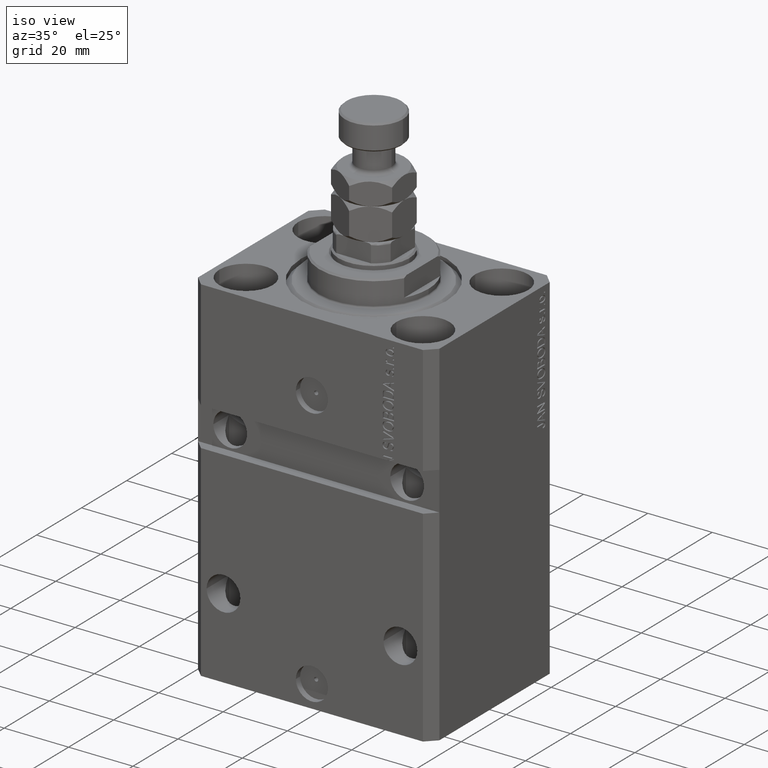
[diagram: clean part render]
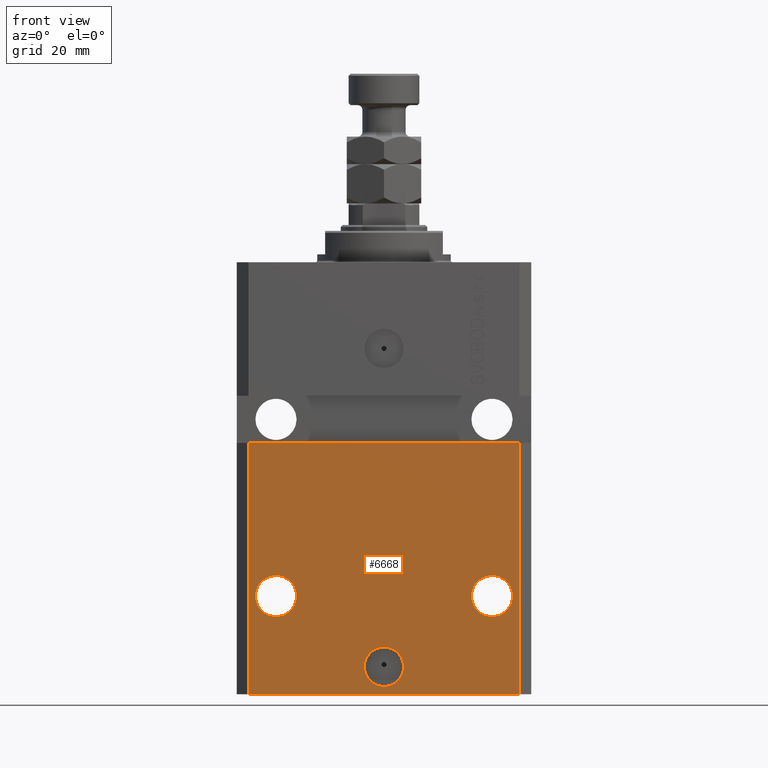
[diagram: tour spotlight — one face highlighted and labeled with its STEP entity id]
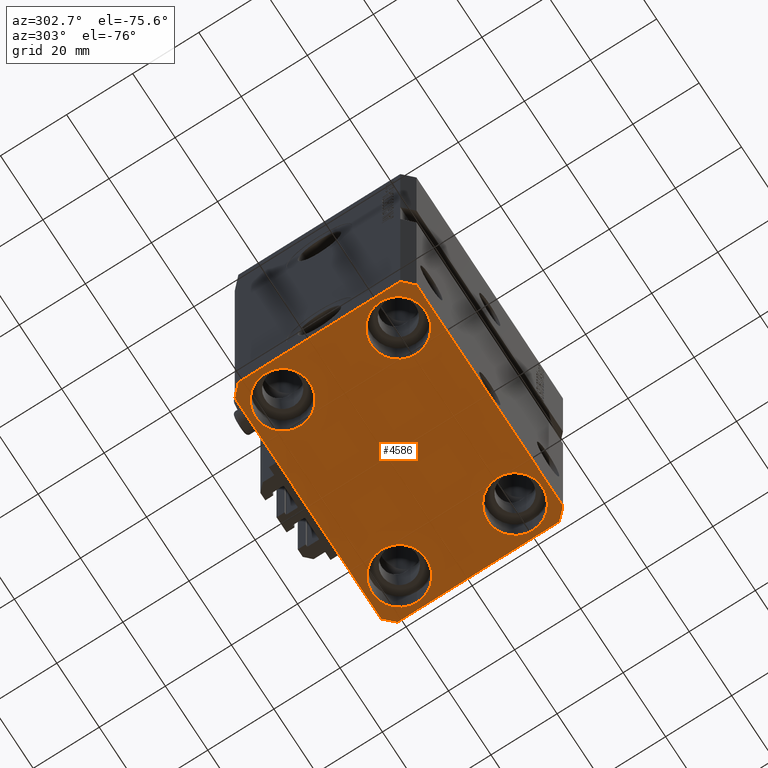
[diagram: tour spotlight — one face highlighted and labeled with its STEP entity id]
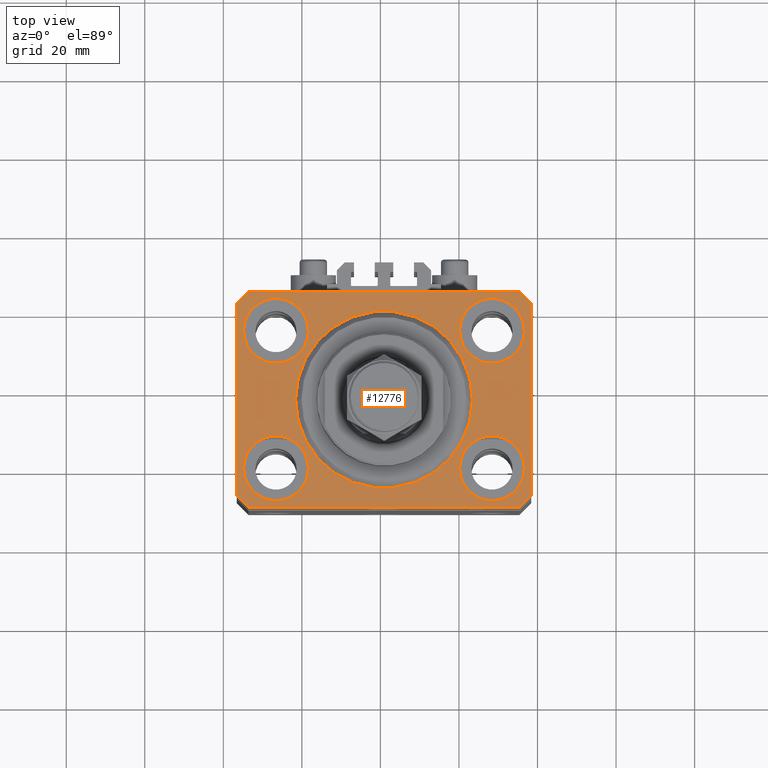
[diagram: tour spotlight — one face highlighted and labeled with its STEP entity id]
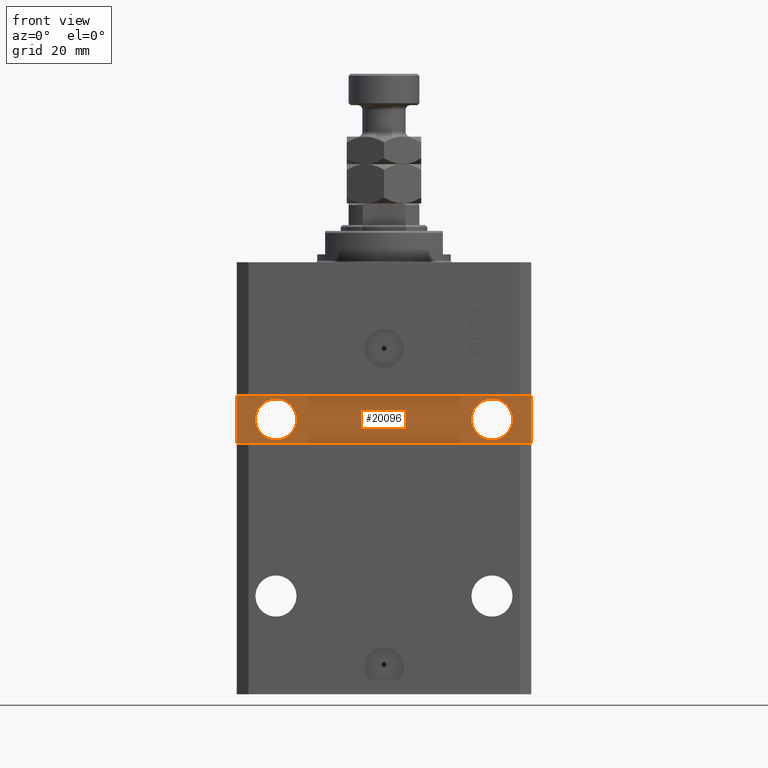
[diagram: tour spotlight — one face highlighted and labeled with its STEP entity id]
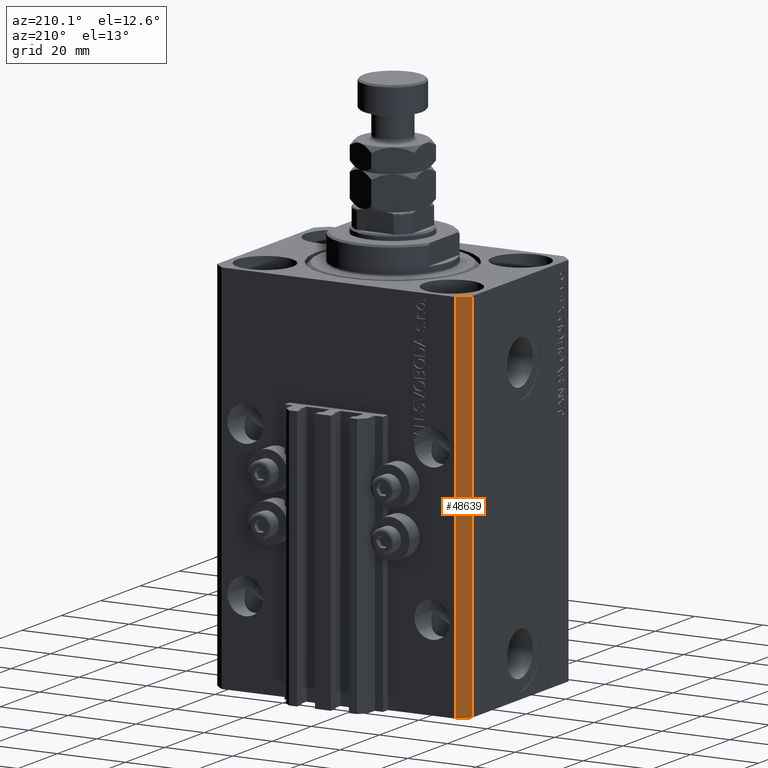
[diagram: tour spotlight — one face highlighted and labeled with its STEP entity id]
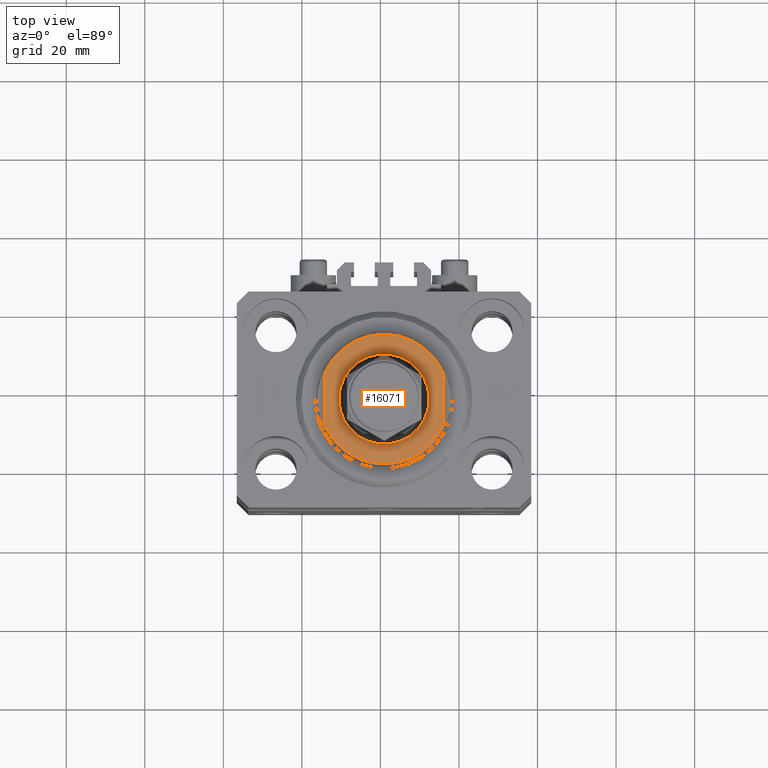
[diagram: tour spotlight — one face highlighted and labeled with its STEP entity id]
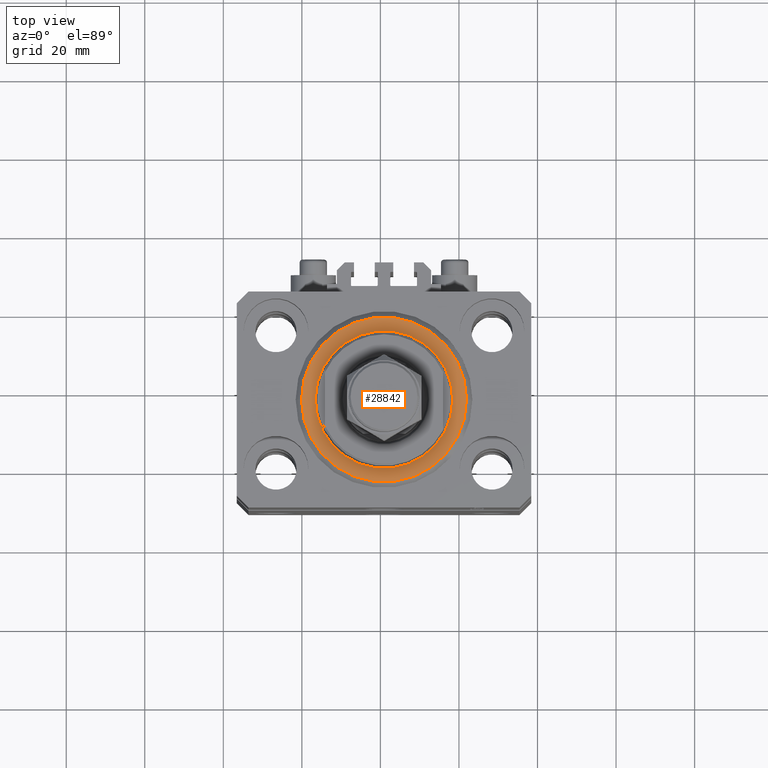
[diagram: tour spotlight — one face highlighted and labeled with its STEP entity id]
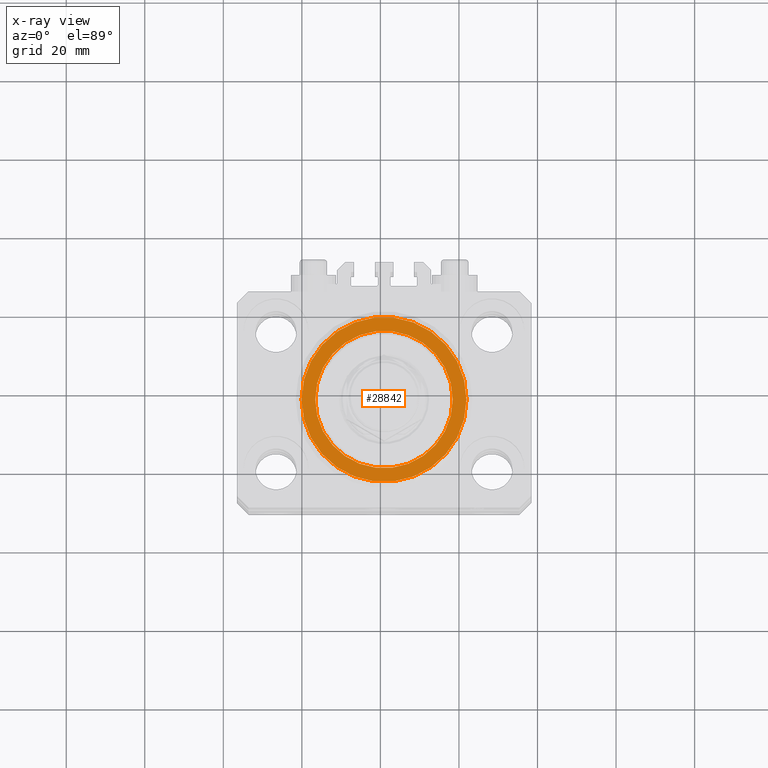
[diagram: x-ray of the same camera — body ghosted, this tour face saturated]
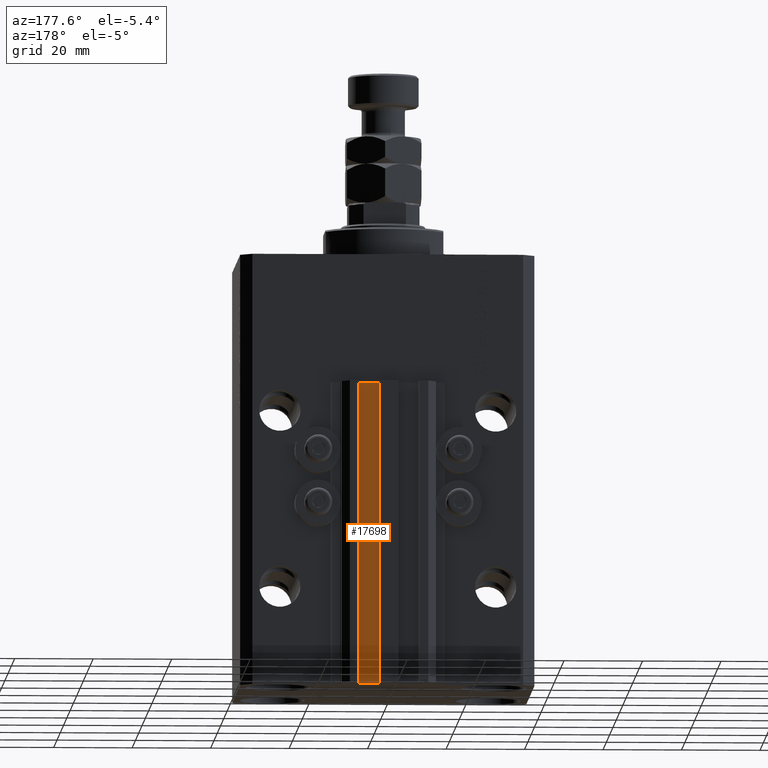
[diagram: tour spotlight — one face highlighted and labeled with its STEP entity id]
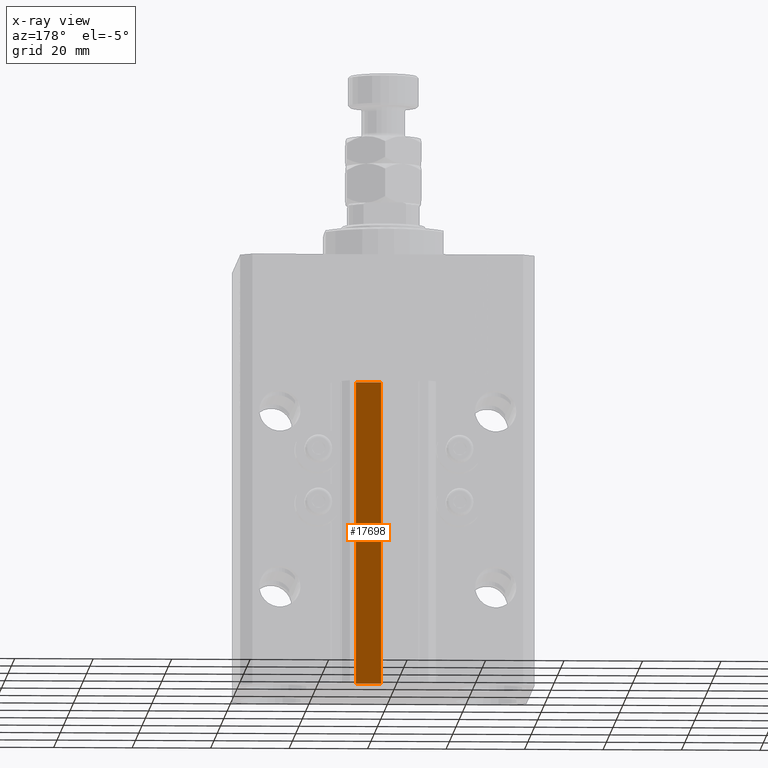
[diagram: x-ray of the same camera — body ghosted, this tour face saturated]
A machine part: a face-by-face anatomy tour. The part has 1136 B-rep faces; the first image is the clean iso view, then the 8 largest visible faces are spotlighted one at a time (largest first), each with its STEP entity span.

Face 1 — front view, entity #6668. In plain terms, the highlighted planar face has unit normal (0, -1, 0).
Definition (entity closure, byte-faithful):
#987 = DIRECTION ( 'NONE',  ( 1.000000000000000000, 0.000000000000000000, 0.000000000000000000 ) ) ;
#1761 = VERTEX_POINT ( 'NONE', #33671 ) ;
#3985 = CARTESIAN_POINT ( 'NONE',  ( -27.50000000000001421, -27.50000000000000000, -84.99999999999998579 ) ) ;
#4241 = VERTEX_POINT ( 'NONE', #5187 ) ;
#4522 = EDGE_CURVE ( 'NONE', #30040, #1761, #25278, .T. ) ;
#4591 = AXIS2_PLACEMENT_3D ( 'NONE', #15993, #42481, #23657 ) ;
#5187 = CARTESIAN_POINT ( 'NONE',  ( 5.000000000000006217, -27.49999999999999645, -103.0000000000000000 ) ) ;
#5592 = FACE_OUTER_BOUND ( 'NONE', #44115, .T. ) ;
#6106 = LINE ( 'NONE', #32879, #41641 ) ;
#6342 = EDGE_LOOP ( 'NONE', ( #37055, #14237 ) ) ;
#6668 = ADVANCED_FACE ( 'NONE', ( #46970, #28143, #43246, #5592 ), #17000, .T. ) ;
#7086 = ORIENTED_EDGE ( 'NONE', *, *, #10982, .T. ) ;
#8364 = CARTESIAN_POINT ( 'NONE',  ( -34.49999999999998579, -27.50000000000000000, -46.00000000000000000 ) ) ;
#8905 = AXIS2_PLACEMENT_3D ( 'NONE', #3985, #46095, #38915 ) ;
#10057 = DIRECTION ( 'NONE',  ( 1.176083712526788232E-16, -1.000000000000000000, 0.000000000000000000 ) ) ;
#10756 = VERTEX_POINT ( 'NONE', #47116 ) ;
#10982 = EDGE_CURVE ( 'NONE', #10756, #37414, #19825, .T. ) ;
#11392 = AXIS2_PLACEMENT_3D ( 'NONE', #28881, #10057, #48442 ) ;
#12920 = ORIENTED_EDGE ( 'NONE', *, *, #29607, .F. ) ;
#14237 = ORIENTED_EDGE ( 'NONE', *, *, #16081, .F. ) ;
#14258 = CARTESIAN_POINT ( 'NONE',  ( -34.49999999999998579, -27.49999999999999645, -110.0000000000000000 ) ) ;
#14736 = EDGE_CURVE ( 'NONE', #46480, #14742, #42148, .T. ) ;
#14742 = VERTEX_POINT ( 'NONE', #16114 ) ;
#15292 = VERTEX_POINT ( 'NONE', #21303 ) ;
#15993 = CARTESIAN_POINT ( 'NONE',  ( -27.50000000000001421, -27.50000000000000000, -84.99999999999998579 ) ) ;
#16081 = EDGE_CURVE ( 'NONE', #1761, #30040, #39063, .T. ) ;
#16114 = CARTESIAN_POINT ( 'NONE',  ( -22.25000000000002132, -27.50000000000000000, -84.99999999999998579 ) ) ;
#16657 = ORIENTED_EDGE ( 'NONE', *, *, #47841, .F. ) ;
#16922 = ORIENTED_EDGE ( 'NONE', *, *, #45763, .F. ) ;
#16930 = DIRECTION ( 'NONE',  ( 1.000000000000000000, 0.000000000000000000, 0.000000000000000000 ) ) ;
#17000 = PLANE ( 'NONE',  #18913 ) ;
#17831 = DIRECTION ( 'NONE',  ( 1.000000000000000000, 0.000000000000000000, 0.000000000000000000 ) ) ;
#18050 = CIRCLE ( 'NONE', #4591, 5.249999999999994671 ) ;
#18913 = AXIS2_PLACEMENT_3D ( 'NONE', #14258, #29616, #25661 ) ;
#19643 = CARTESIAN_POINT ( 'NONE',  ( -37.50000000000000000, -27.50000000000000000, -46.00000000000000000 ) ) ;
#19825 = LINE ( 'NONE', #34934, #24557 ) ;
#21135 = VERTEX_POINT ( 'NONE', #8364 ) ;
#21303 = CARTESIAN_POINT ( 'NONE',  ( 34.49999999999999289, -27.49999999999999289, -46.00000000000000711 ) ) ;
#21546 = DIRECTION ( 'NONE',  ( 1.176083712526788232E-16, -1.000000000000000000, 0.000000000000000000 ) ) ;
#21587 = ORIENTED_EDGE ( 'NONE', *, *, #34475, .T. ) ;
#21888 = CARTESIAN_POINT ( 'NONE',  ( -5.000000000000006217, -27.49999999999999645, -103.0000000000000000 ) ) ;
#22899 = EDGE_CURVE ( 'NONE', #10756, #21135, #6106, .T. ) ;
#23657 = DIRECTION ( 'NONE',  ( -1.000000000000000000, 0.000000000000000000, 0.000000000000000000 ) ) ;
#23684 = AXIS2_PLACEMENT_3D ( 'NONE', #30205, #21546, #17831 ) ;
#23851 = DIRECTION ( 'NONE',  ( 1.000000000000000000, 9.251858538542972814E-17, -9.251858538542972814E-17 ) ) ;
#24548 = VERTEX_POINT ( 'NONE', #21888 ) ;
#24557 = VECTOR ( 'NONE', #987, 1000.000000000000000 ) ;
#25278 = CIRCLE ( 'NONE', #23684, 5.249999999999994671 ) ;
#25282 = CARTESIAN_POINT ( 'NONE',  ( 0.000000000000000000, -27.49999999999999645, -103.0000000000000000 ) ) ;
#25661 = DIRECTION ( 'NONE',  ( 0.000000000000000000, -0.000000000000000000, -1.000000000000000000 ) ) ;
#26149 = VECTOR ( 'NONE', #23851, 1000.000000000000000 ) ;
#26719 = AXIS2_PLACEMENT_3D ( 'NONE', #46905, #39726, #16930 ) ;
#27248 = CARTESIAN_POINT ( 'NONE',  ( 34.49999999999999289, -27.49999999999999645, -110.0000000000000000 ) ) ;
#28143 = FACE_BOUND ( 'NONE', #6342, .T. ) ;
#28378 = EDGE_CURVE ( 'NONE', #4241, #24548, #30670, .T. ) ;
#28881 = CARTESIAN_POINT ( 'NONE',  ( 27.50000000000001421, -27.49999999999999289, -84.99999999999998579 ) ) ;
#29060 = EDGE_LOOP ( 'NONE', ( #41451, #16922 ) ) ;
#29246 = DIRECTION ( 'NONE',  ( 1.176083712526788232E-16, -1.000000000000000000, 0.000000000000000000 ) ) ;
#29366 = CIRCLE ( 'NONE', #41213, 5.000000000000006217 ) ;
#29607 = EDGE_CURVE ( 'NONE', #14742, #46480, #18050, .T. ) ;
#29616 = DIRECTION ( 'NONE',  ( 0.000000000000000000, -1.000000000000000000, 0.000000000000000000 ) ) ;
#29656 = DIRECTION ( 'NONE',  ( 0.000000000000000000, 0.000000000000000000, 1.000000000000000000 ) ) ;
#29827 = LINE ( 'NONE', #19643, #26149 ) ;
#30040 = VERTEX_POINT ( 'NONE', #43786 ) ;
#30100 = DIRECTION ( 'NONE',  ( 0.000000000000000000, 0.000000000000000000, 1.000000000000000000 ) ) ;
#30205 = CARTESIAN_POINT ( 'NONE',  ( 27.50000000000001421, -27.49999999999999289, -84.99999999999998579 ) ) ;
#30670 = CIRCLE ( 'NONE', #26719, 5.000000000000006217 ) ;
#32879 = CARTESIAN_POINT ( 'NONE',  ( -34.49999999999998579, -27.49999999999999645, -110.0000000000000000 ) ) ;
#33671 = CARTESIAN_POINT ( 'NONE',  ( 22.25000000000002132, -27.49999999999999289, -84.99999999999998579 ) ) ;
#34475 = EDGE_CURVE ( 'NONE', #37414, #15292, #48188, .T. ) ;
#34934 = CARTESIAN_POINT ( 'NONE',  ( -34.49999999999998579, -27.49999999999999645, -110.0000000000000000 ) ) ;
#36098 = EDGE_LOOP ( 'NONE', ( #12920, #47730 ) ) ;
#37055 = ORIENTED_EDGE ( 'NONE', *, *, #4522, .F. ) ;
#37414 = VERTEX_POINT ( 'NONE', #27248 ) ;
#37566 = ORIENTED_EDGE ( 'NONE', *, *, #22899, .F. ) ;
#38915 = DIRECTION ( 'NONE',  ( -1.000000000000000000, 0.000000000000000000, 0.000000000000000000 ) ) ;
#39063 = CIRCLE ( 'NONE', #11392, 5.249999999999994671 ) ;
#39726 = DIRECTION ( 'NONE',  ( 1.176083712526788232E-16, -1.000000000000000000, 0.000000000000000000 ) ) ;
#41213 = AXIS2_PLACEMENT_3D ( 'NONE', #25282, #29246, #44360 ) ;
#41451 = ORIENTED_EDGE ( 'NONE', *, *, #28378, .F. ) ;
#41641 = VECTOR ( 'NONE', #29656, 1000.000000000000000 ) ;
#42148 = CIRCLE ( 'NONE', #8905, 5.249999999999994671 ) ;
#42481 = DIRECTION ( 'NONE',  ( 1.176083712526788232E-16, -1.000000000000000000, 0.000000000000000000 ) ) ;
#43246 = FACE_BOUND ( 'NONE', #36098, .T. ) ;
#43786 = CARTESIAN_POINT ( 'NONE',  ( 32.75000000000000711, -27.49999999999999289, -84.99999999999998579 ) ) ;
#44115 = EDGE_LOOP ( 'NONE', ( #16657, #37566, #7086, #21587 ) ) ;
#44360 = DIRECTION ( 'NONE',  ( 1.000000000000000000, 0.000000000000000000, 0.000000000000000000 ) ) ;
#44749 = CARTESIAN_POINT ( 'NONE',  ( -32.75000000000000711, -27.50000000000000000, -84.99999999999998579 ) ) ;
#45763 = EDGE_CURVE ( 'NONE', #24548, #4241, #29366, .T. ) ;
#46095 = DIRECTION ( 'NONE',  ( 1.176083712526788232E-16, -1.000000000000000000, 0.000000000000000000 ) ) ;
#46480 = VERTEX_POINT ( 'NONE', #44749 ) ;
#46718 = VECTOR ( 'NONE', #30100, 1000.000000000000000 ) ;
#46905 = CARTESIAN_POINT ( 'NONE',  ( 0.000000000000000000, -27.49999999999999645, -103.0000000000000000 ) ) ;
#46970 = FACE_BOUND ( 'NONE', #29060, .T. ) ;
#47116 = CARTESIAN_POINT ( 'NONE',  ( -34.49999999999998579, -27.49999999999999645, -110.0000000000000000 ) ) ;
#47730 = ORIENTED_EDGE ( 'NONE', *, *, #14736, .F. ) ;
#47841 = EDGE_CURVE ( 'NONE', #21135, #15292, #29827, .T. ) ;
#47938 = CARTESIAN_POINT ( 'NONE',  ( 34.49999999999999289, -27.49999999999999645, -110.0000000000000000 ) ) ;
#48188 = LINE ( 'NONE', #47938, #46718 ) ;
#48442 = DIRECTION ( 'NONE',  ( 1.000000000000000000, 0.000000000000000000, 0.000000000000000000 ) ) ;

Face 2 — auxiliary view, entity #4586. In plain terms, the highlighted planar face has unit normal (0, 0, 1).
Definition (entity closure, byte-faithful):
#695 = EDGE_CURVE ( 'NONE', #40244, #42543, #17986, .T. ) ;
#941 = DIRECTION ( 'NONE',  ( 1.000000000000000000, 0.000000000000000000, -0.000000000000000000 ) ) ;
#987 = DIRECTION ( 'NONE',  ( 1.000000000000000000, 0.000000000000000000, 0.000000000000000000 ) ) ;
#1080 = CARTESIAN_POINT ( 'NONE',  ( 27.49999999999999645, 17.50000000000001066, -110.0000000000000000 ) ) ;
#1880 = VECTOR ( 'NONE', #13453, 1000.000000000000000 ) ;
#2062 = DIRECTION ( 'NONE',  ( -0.000000000000000000, -0.000000000000000000, 1.000000000000000000 ) ) ;
#2554 = CIRCLE ( 'NONE', #10506, 8.250000000000000000 ) ;
#3085 = CARTESIAN_POINT ( 'NONE',  ( 35.74999999999999289, 17.50000000000001066, -110.0000000000000000 ) ) ;
#3467 = DIRECTION ( 'NONE',  ( -0.000000000000000000, -0.000000000000000000, 1.000000000000000000 ) ) ;
#3664 = DIRECTION ( 'NONE',  ( 1.000000000000000000, 0.000000000000000000, 0.000000000000000000 ) ) ;
#3944 = CIRCLE ( 'NONE', #8689, 8.250000000000000000 ) ;
#4238 = DIRECTION ( 'NONE',  ( -0.000000000000000000, -0.000000000000000000, 1.000000000000000000 ) ) ;
#4586 = ADVANCED_FACE ( 'NONE', ( #34890, #45554, #11623, #38372, #22755 ), #23002, .F. ) ;
#4820 = CARTESIAN_POINT ( 'NONE',  ( 27.49999999999999645, 17.50000000000001066, -110.0000000000000000 ) ) ;
#5030 = CARTESIAN_POINT ( 'NONE',  ( 27.50000000000000355, -17.50000000000000000, -110.0000000000000000 ) ) ;
#5492 = EDGE_CURVE ( 'NONE', #18588, #9791, #32390, .T. ) ;
#6049 = VERTEX_POINT ( 'NONE', #34777 ) ;
#6165 = EDGE_CURVE ( 'NONE', #34145, #20815, #3944, .T. ) ;
#7579 = VERTEX_POINT ( 'NONE', #17979 ) ;
#7613 = CARTESIAN_POINT ( 'NONE',  ( 19.25000000000000000, -17.50000000000000000, -110.0000000000000000 ) ) ;
#7862 = AXIS2_PLACEMENT_3D ( 'NONE', #11691, #4238, #31231 ) ;
#8040 = CARTESIAN_POINT ( 'NONE',  ( -27.50000000000000355, 17.50000000000000000, -110.0000000000000000 ) ) ;
#8333 = ORIENTED_EDGE ( 'NONE', *, *, #42564, .T. ) ;
#8562 = ORIENTED_EDGE ( 'NONE', *, *, #6165, .T. ) ;
#8689 = AXIS2_PLACEMENT_3D ( 'NONE', #5030, #20151, #35258 ) ;
#8756 = EDGE_CURVE ( 'NONE', #28225, #27960, #26090, .T. ) ;
#8958 = CARTESIAN_POINT ( 'NONE',  ( 34.50000000000056843, 27.50000000000000000, -110.0000000000000000 ) ) ;
#9791 = VERTEX_POINT ( 'NONE', #40608 ) ;
#9820 = EDGE_CURVE ( 'NONE', #20815, #34145, #38028, .T. ) ;
#10506 = AXIS2_PLACEMENT_3D ( 'NONE', #8040, #38273, #23141 ) ;
#10711 = CARTESIAN_POINT ( 'NONE',  ( -27.50000000000000355, -17.50000000000000000, -110.0000000000000000 ) ) ;
#10756 = VERTEX_POINT ( 'NONE', #47116 ) ;
#10982 = EDGE_CURVE ( 'NONE', #10756, #37414, #19825, .T. ) ;
#11074 = DIRECTION ( 'NONE',  ( 0.7071067811865474617, 0.7071067811865474617, 0.000000000000000000 ) ) ;
#11623 = FACE_BOUND ( 'NONE', #25160, .T. ) ;
#11645 = DIRECTION ( 'NONE',  ( 1.000000000000000000, 0.000000000000000000, 0.000000000000000000 ) ) ;
#11691 = CARTESIAN_POINT ( 'NONE',  ( -27.50000000000000355, 17.50000000000000000, -110.0000000000000000 ) ) ;
#11886 = AXIS2_PLACEMENT_3D ( 'NONE', #26237, #14339, #3664 ) ;
#13290 = EDGE_LOOP ( 'NONE', ( #46416, #20863, #37123, #28648, #25718, #29406, #35586, #17984 ) ) ;
#13405 = VERTEX_POINT ( 'NONE', #20920 ) ;
#13429 = DIRECTION ( 'NONE',  ( 0.7071067811865483499, -0.7071067811865466846, 0.000000000000000000 ) ) ;
#13453 = DIRECTION ( 'NONE',  ( -0.7071067811865471286, -0.7071067811865479058, 0.000000000000000000 ) ) ;
#13574 = CARTESIAN_POINT ( 'NONE',  ( 37.50000000000051870, 24.49999999999995381, -110.0000000000000000 ) ) ;
#14015 = EDGE_LOOP ( 'NONE', ( #8562, #23213 ) ) ;
#14019 = EDGE_CURVE ( 'NONE', #37414, #13405, #48727, .T. ) ;
#14339 = DIRECTION ( 'NONE',  ( -0.000000000000000000, -0.000000000000000000, 1.000000000000000000 ) ) ;
#15190 = EDGE_CURVE ( 'NONE', #7579, #6049, #2554, .T. ) ;
#15898 = LINE ( 'NONE', #8958, #29505 ) ;
#16198 = DIRECTION ( 'NONE',  ( -0.000000000000000000, -0.000000000000000000, 1.000000000000000000 ) ) ;
#16346 = EDGE_CURVE ( 'NONE', #33445, #40244, #17422, .T. ) ;
#16932 = EDGE_LOOP ( 'NONE', ( #39108, #46285 ) ) ;
#17422 = LINE ( 'NONE', #28576, #1880 ) ;
#17627 = CARTESIAN_POINT ( 'NONE',  ( 37.50000000000051870, 24.49999999999995381, -110.0000000000000000 ) ) ;
#17871 = VERTEX_POINT ( 'NONE', #36134 ) ;
#17979 = CARTESIAN_POINT ( 'NONE',  ( -35.75000000000000711, 17.50000000000000000, -110.0000000000000000 ) ) ;
#17984 = ORIENTED_EDGE ( 'NONE', *, *, #16346, .F. ) ;
#17986 = LINE ( 'NONE', #33357, #38581 ) ;
#18396 = DIRECTION ( 'NONE',  ( 1.000000000000000000, 0.000000000000000000, 0.000000000000000000 ) ) ;
#18588 = VERTEX_POINT ( 'NONE', #17627 ) ;
#18752 = DIRECTION ( 'NONE',  ( 1.076236605503979380E-14, 1.000000000000000000, 0.000000000000000000 ) ) ;
#19649 = LINE ( 'NONE', #46389, #29296 ) ;
#19778 = CIRCLE ( 'NONE', #38002, 8.250000000000000000 ) ;
#19825 = LINE ( 'NONE', #34934, #24557 ) ;
#19912 = CARTESIAN_POINT ( 'NONE',  ( -34.49999999999999289, 27.50000000000000000, -110.0000000000000000 ) ) ;
#19935 = VECTOR ( 'NONE', #11074, 1000.000000000000114 ) ;
#20151 = DIRECTION ( 'NONE',  ( -0.000000000000000000, -0.000000000000000000, 1.000000000000000000 ) ) ;
#20508 = DIRECTION ( 'NONE',  ( -0.7071067811865356934, 0.7071067811865594521, 0.000000000000000000 ) ) ;
#20815 = VERTEX_POINT ( 'NONE', #46072 ) ;
#20863 = ORIENTED_EDGE ( 'NONE', *, *, #5492, .F. ) ;
#20920 = CARTESIAN_POINT ( 'NONE',  ( 37.49999999999999289, -24.50000000000000000, -110.0000000000000000 ) ) ;
#22755 = FACE_OUTER_BOUND ( 'NONE', #13290, .T. ) ;
#22882 = CIRCLE ( 'NONE', #7862, 8.250000000000000000 ) ;
#23002 = PLANE ( 'NONE',  #43445 ) ;
#23141 = DIRECTION ( 'NONE',  ( 1.000000000000000000, 0.000000000000000000, 0.000000000000000000 ) ) ;
#23213 = ORIENTED_EDGE ( 'NONE', *, *, #9820, .T. ) ;
#24557 = VECTOR ( 'NONE', #987, 1000.000000000000000 ) ;
#25160 = EDGE_LOOP ( 'NONE', ( #8333, #26673 ) ) ;
#25311 = AXIS2_PLACEMENT_3D ( 'NONE', #4820, #2062, #46424 ) ;
#25674 = DIRECTION ( 'NONE',  ( 0.000000000000000000, -1.000000000000000000, 0.000000000000000000 ) ) ;
#25718 = ORIENTED_EDGE ( 'NONE', *, *, #10982, .F. ) ;
#25802 = EDGE_CURVE ( 'NONE', #42543, #10756, #35244, .T. ) ;
#26090 = CIRCLE ( 'NONE', #25311, 8.249999999999992895 ) ;
#26237 = CARTESIAN_POINT ( 'NONE',  ( 27.50000000000000355, -17.50000000000000000, -110.0000000000000000 ) ) ;
#26673 = ORIENTED_EDGE ( 'NONE', *, *, #8756, .T. ) ;
#26859 = CIRCLE ( 'NONE', #47427, 8.249999999999992895 ) ;
#27210 = DIRECTION ( 'NONE',  ( 0.000000000000000000, 0.000000000000000000, 1.000000000000000000 ) ) ;
#27248 = CARTESIAN_POINT ( 'NONE',  ( 34.49999999999999289, -27.49999999999999645, -110.0000000000000000 ) ) ;
#27960 = VERTEX_POINT ( 'NONE', #46463 ) ;
#28225 = VERTEX_POINT ( 'NONE', #3085 ) ;
#28323 = DIRECTION ( 'NONE',  ( 1.000000000000000000, 0.000000000000000000, 0.000000000000000000 ) ) ;
#28576 = CARTESIAN_POINT ( 'NONE',  ( -34.49999999999999289, 27.50000000000000000, -110.0000000000000000 ) ) ;
#28631 = ORIENTED_EDGE ( 'NONE', *, *, #15190, .T. ) ;
#28648 = ORIENTED_EDGE ( 'NONE', *, *, #14019, .F. ) ;
#29296 = VECTOR ( 'NONE', #18752, 1000.000000000000000 ) ;
#29406 = ORIENTED_EDGE ( 'NONE', *, *, #25802, .F. ) ;
#29505 = VECTOR ( 'NONE', #38694, 1000.000000000000000 ) ;
#29776 = DIRECTION ( 'NONE',  ( -0.000000000000000000, -0.000000000000000000, 1.000000000000000000 ) ) ;
#30089 = EDGE_LOOP ( 'NONE', ( #28631, #32869 ) ) ;
#30929 = CARTESIAN_POINT ( 'NONE',  ( 0.000000000000000000, 0.000000000000000000, -110.0000000000000000 ) ) ;
#31231 = DIRECTION ( 'NONE',  ( 1.000000000000000000, 0.000000000000000000, 0.000000000000000000 ) ) ;
#32390 = LINE ( 'NONE', #13574, #35608 ) ;
#32847 = EDGE_CURVE ( 'NONE', #6049, #7579, #22882, .T. ) ;
#32869 = ORIENTED_EDGE ( 'NONE', *, *, #32847, .T. ) ;
#33299 = VERTEX_POINT ( 'NONE', #43295 ) ;
#33357 = CARTESIAN_POINT ( 'NONE',  ( -37.49999999999999289, 24.50000000000000000, -110.0000000000000000 ) ) ;
#33445 = VERTEX_POINT ( 'NONE', #19912 ) ;
#34003 = CIRCLE ( 'NONE', #37261, 8.250000000000000000 ) ;
#34145 = VERTEX_POINT ( 'NONE', #7613 ) ;
#34777 = CARTESIAN_POINT ( 'NONE',  ( -19.25000000000000355, 17.50000000000000000, -110.0000000000000000 ) ) ;
#34890 = FACE_BOUND ( 'NONE', #16932, .T. ) ;
#34934 = CARTESIAN_POINT ( 'NONE',  ( -34.49999999999998579, -27.49999999999999645, -110.0000000000000000 ) ) ;
#35244 = LINE ( 'NONE', #47371, #48065 ) ;
#35258 = DIRECTION ( 'NONE',  ( 1.000000000000000000, 0.000000000000000000, 0.000000000000000000 ) ) ;
#35269 = CARTESIAN_POINT ( 'NONE',  ( -37.49999999999999289, -24.50000000000000000, -110.0000000000000000 ) ) ;
#35586 = ORIENTED_EDGE ( 'NONE', *, *, #695, .F. ) ;
#35608 = VECTOR ( 'NONE', #20508, 1000.000000000000114 ) ;
#36134 = CARTESIAN_POINT ( 'NONE',  ( -19.25000000000000355, -17.50000000000000000, -110.0000000000000000 ) ) ;
#37123 = ORIENTED_EDGE ( 'NONE', *, *, #42985, .F. ) ;
#37261 = AXIS2_PLACEMENT_3D ( 'NONE', #37435, #3467, #11645 ) ;
#37414 = VERTEX_POINT ( 'NONE', #27248 ) ;
#37435 = CARTESIAN_POINT ( 'NONE',  ( -27.50000000000000355, -17.50000000000000000, -110.0000000000000000 ) ) ;
#38002 = AXIS2_PLACEMENT_3D ( 'NONE', #10711, #29776, #18396 ) ;
#38028 = CIRCLE ( 'NONE', #11886, 8.250000000000000000 ) ;
#38273 = DIRECTION ( 'NONE',  ( -0.000000000000000000, -0.000000000000000000, 1.000000000000000000 ) ) ;
#38372 = FACE_BOUND ( 'NONE', #30089, .T. ) ;
#38581 = VECTOR ( 'NONE', #25674, 1000.000000000000000 ) ;
#38694 = DIRECTION ( 'NONE',  ( -1.000000000000000000, 0.000000000000000000, 0.000000000000000000 ) ) ;
#39108 = ORIENTED_EDGE ( 'NONE', *, *, #43302, .T. ) ;
#39131 = EDGE_CURVE ( 'NONE', #9791, #33445, #15898, .T. ) ;
#40244 = VERTEX_POINT ( 'NONE', #47403 ) ;
#40608 = CARTESIAN_POINT ( 'NONE',  ( 34.50000000000056843, 27.50000000000000000, -110.0000000000000000 ) ) ;
#42543 = VERTEX_POINT ( 'NONE', #35269 ) ;
#42564 = EDGE_CURVE ( 'NONE', #27960, #28225, #26859, .T. ) ;
#42985 = EDGE_CURVE ( 'NONE', #13405, #18588, #19649, .T. ) ;
#43295 = CARTESIAN_POINT ( 'NONE',  ( -35.75000000000000711, -17.50000000000000000, -110.0000000000000000 ) ) ;
#43302 = EDGE_CURVE ( 'NONE', #33299, #17871, #19778, .T. ) ;
#43445 = AXIS2_PLACEMENT_3D ( 'NONE', #30929, #27210, #941 ) ;
#45002 = CARTESIAN_POINT ( 'NONE',  ( 34.49999999999999289, -27.49999999999999645, -110.0000000000000000 ) ) ;
#45554 = FACE_BOUND ( 'NONE', #14015, .T. ) ;
#45834 = EDGE_CURVE ( 'NONE', #17871, #33299, #34003, .T. ) ;
#46072 = CARTESIAN_POINT ( 'NONE',  ( 35.75000000000000711, -17.50000000000000000, -110.0000000000000000 ) ) ;
#46285 = ORIENTED_EDGE ( 'NONE', *, *, #45834, .T. ) ;
#46389 = CARTESIAN_POINT ( 'NONE',  ( 37.49999999999999289, -24.50000000000000000, -110.0000000000000000 ) ) ;
#46416 = ORIENTED_EDGE ( 'NONE', *, *, #39131, .F. ) ;
#46424 = DIRECTION ( 'NONE',  ( 1.000000000000000000, 0.000000000000000000, 0.000000000000000000 ) ) ;
#46463 = CARTESIAN_POINT ( 'NONE',  ( 19.25000000000000000, 17.50000000000001066, -110.0000000000000000 ) ) ;
#47116 = CARTESIAN_POINT ( 'NONE',  ( -34.49999999999998579, -27.49999999999999645, -110.0000000000000000 ) ) ;
#47371 = CARTESIAN_POINT ( 'NONE',  ( -37.49999999999999289, -24.50000000000000000, -110.0000000000000000 ) ) ;
#47403 = CARTESIAN_POINT ( 'NONE',  ( -37.49999999999999289, 24.50000000000000000, -110.0000000000000000 ) ) ;
#47427 = AXIS2_PLACEMENT_3D ( 'NONE', #1080, #16198, #28323 ) ;
#48065 = VECTOR ( 'NONE', #13429, 1000.000000000000000 ) ;
#48727 = LINE ( 'NONE', #45002, #19935 ) ;

Face 3 — top view, entity #12776. In plain terms, the highlighted planar face has unit normal (0, 0, 1).
Definition (entity closure, byte-faithful):
#38 = CARTESIAN_POINT ( 'NONE',  ( 0.000000000000000000, 0.000000000000000000, 0.000000000000000000 ) ) ;
#161 = DIRECTION ( 'NONE',  ( 0.000000000000000000, 0.000000000000000000, 1.000000000000000000 ) ) ;
#292 = CARTESIAN_POINT ( 'NONE',  ( 34.50000000000056843, 27.50000000000000000, 0.000000000000000000 ) ) ;
#501 = VECTOR ( 'NONE', #4588, 1000.000000000000114 ) ;
#689 = VERTEX_POINT ( 'NONE', #41274 ) ;
#1163 = DIRECTION ( 'NONE',  ( -0.7071067811865471286, -0.7071067811865479058, 0.000000000000000000 ) ) ;
#1687 = AXIS2_PLACEMENT_3D ( 'NONE', #38467, #23103, #4497 ) ;
#1688 = EDGE_CURVE ( 'NONE', #7622, #9854, #48909, .T. ) ;
#1986 = CARTESIAN_POINT ( 'NONE',  ( 19.25000000000000000, -17.50000000000000000, 0.000000000000000000 ) ) ;
#2000 = EDGE_LOOP ( 'NONE', ( #18365, #21214 ) ) ;
#2396 = CIRCLE ( 'NONE', #3994, 8.249999999999992895 ) ;
#3662 = VERTEX_POINT ( 'NONE', #28554 ) ;
#3994 = AXIS2_PLACEMENT_3D ( 'NONE', #19890, #8251, #23351 ) ;
#4197 = VERTEX_POINT ( 'NONE', #38421 ) ;
#4239 = LINE ( 'NONE', #292, #47713 ) ;
#4497 = DIRECTION ( 'NONE',  ( 1.000000000000000000, 0.000000000000000000, 0.000000000000000000 ) ) ;
#4588 = DIRECTION ( 'NONE',  ( -0.7071067811865356934, 0.7071067811865594521, 0.000000000000000000 ) ) ;
#4727 = DIRECTION ( 'NONE',  ( -1.000000000000000000, 0.000000000000000000, 0.000000000000000000 ) ) ;
#5577 = ORIENTED_EDGE ( 'NONE', *, *, #29221, .F. ) ;
#5609 = EDGE_CURVE ( 'NONE', #45231, #21227, #20571, .T. ) ;
#5841 = VECTOR ( 'NONE', #40028, 1000.000000000000114 ) ;
#6119 = LINE ( 'NONE', #36364, #37376 ) ;
#6368 = CIRCLE ( 'NONE', #16654, 8.250000000000000000 ) ;
#6677 = LINE ( 'NONE', #14610, #40364 ) ;
#6741 = DIRECTION ( 'NONE',  ( 1.000000000000000000, 0.000000000000000000, 0.000000000000000000 ) ) ;
#7622 = VERTEX_POINT ( 'NONE', #26636 ) ;
#8251 = DIRECTION ( 'NONE',  ( 0.000000000000000000, 0.000000000000000000, 1.000000000000000000 ) ) ;
#8565 = AXIS2_PLACEMENT_3D ( 'NONE', #28706, #32898, #36628 ) ;
#9062 = EDGE_LOOP ( 'NONE', ( #47114, #39582 ) ) ;
#9462 = EDGE_LOOP ( 'NONE', ( #23226, #35279 ) ) ;
#9780 = DIRECTION ( 'NONE',  ( 0.000000000000000000, 0.000000000000000000, 1.000000000000000000 ) ) ;
#9854 = VERTEX_POINT ( 'NONE', #11124 ) ;
#9991 = EDGE_CURVE ( 'NONE', #17522, #13278, #12562, .T. ) ;
#10236 = VERTEX_POINT ( 'NONE', #44253 ) ;
#10441 = EDGE_CURVE ( 'NONE', #32233, #689, #45118, .T. ) ;
#10555 = LINE ( 'NONE', #22170, #5841 ) ;
#11101 = ORIENTED_EDGE ( 'NONE', *, *, #33136, .T. ) ;
#11124 = CARTESIAN_POINT ( 'NONE',  ( -19.25000000000000355, 17.50000000000000000, 0.000000000000000000 ) ) ;
#11186 = VECTOR ( 'NONE', #43604, 1000.000000000000000 ) ;
#11215 = CARTESIAN_POINT ( 'NONE',  ( -34.49999999999998579, -27.49999999999999645, 0.000000000000000000 ) ) ;
#11291 = AXIS2_PLACEMENT_3D ( 'NONE', #38, #15159, #19354 ) ;
#11342 = DIRECTION ( 'NONE',  ( 1.000000000000000000, 0.000000000000000000, 0.000000000000000000 ) ) ;
#11734 = EDGE_CURVE ( 'NONE', #13278, #12196, #47313, .T. ) ;
#12143 = FACE_BOUND ( 'NONE', #9062, .T. ) ;
#12196 = VERTEX_POINT ( 'NONE', #13814 ) ;
#12562 = LINE ( 'NONE', #46256, #39567 ) ;
#12616 = DIRECTION ( 'NONE',  ( 1.000000000000000000, 0.000000000000000000, -0.000000000000000000 ) ) ;
#12776 = ADVANCED_FACE ( 'NONE', ( #16095, #16327, #12143, #46546, #23770, #23281 ), #35656, .T. ) ;
#13154 = CIRCLE ( 'NONE', #37729, 8.250000000000000000 ) ;
#13278 = VERTEX_POINT ( 'NONE', #44514 ) ;
#13814 = CARTESIAN_POINT ( 'NONE',  ( -37.49999999999999289, -24.50000000000000000, 0.000000000000000000 ) ) ;
#14250 = AXIS2_PLACEMENT_3D ( 'NONE', #40580, #29172, #11342 ) ;
#14610 = CARTESIAN_POINT ( 'NONE',  ( -34.49999999999998579, -27.49999999999999645, 0.000000000000000000 ) ) ;
#14834 = EDGE_CURVE ( 'NONE', #21227, #45231, #23150, .T. ) ;
#15159 = DIRECTION ( 'NONE',  ( 0.000000000000000000, 0.000000000000000000, 1.000000000000000000 ) ) ;
#15278 = DIRECTION ( 'NONE',  ( 1.000000000000000000, 0.000000000000000000, 0.000000000000000000 ) ) ;
#15657 = AXIS2_PLACEMENT_3D ( 'NONE', #42903, #39182, #27540 ) ;
#15746 = ORIENTED_EDGE ( 'NONE', *, *, #15907, .T. ) ;
#15907 = EDGE_CURVE ( 'NONE', #4197, #28451, #20714, .T. ) ;
#15940 = AXIS2_PLACEMENT_3D ( 'NONE', #38407, #27244, #12616 ) ;
#16030 = EDGE_CURVE ( 'NONE', #3662, #4197, #10555, .T. ) ;
#16095 = FACE_BOUND ( 'NONE', #2000, .T. ) ;
#16327 = FACE_BOUND ( 'NONE', #47539, .T. ) ;
#16654 = AXIS2_PLACEMENT_3D ( 'NONE', #37542, #41970, #22416 ) ;
#16716 = DIRECTION ( 'NONE',  ( 1.000000000000000000, 0.000000000000000000, 0.000000000000000000 ) ) ;
#17150 = ORIENTED_EDGE ( 'NONE', *, *, #11734, .T. ) ;
#17216 = ORIENTED_EDGE ( 'NONE', *, *, #9991, .T. ) ;
#17522 = VERTEX_POINT ( 'NONE', #39417 ) ;
#17904 = CARTESIAN_POINT ( 'NONE',  ( 37.50000000000051870, 24.49999999999995381, 0.000000000000000000 ) ) ;
#18365 = ORIENTED_EDGE ( 'NONE', *, *, #36934, .F. ) ;
#19354 = DIRECTION ( 'NONE',  ( 1.000000000000000000, 0.000000000000000000, 0.000000000000000000 ) ) ;
#19828 = AXIS2_PLACEMENT_3D ( 'NONE', #43711, #9780, #16716 ) ;
#19890 = CARTESIAN_POINT ( 'NONE',  ( 27.49999999999999645, 17.50000000000001066, 0.000000000000000000 ) ) ;
#20571 = CIRCLE ( 'NONE', #14250, 22.50000000000000355 ) ;
#20714 = LINE ( 'NONE', #35570, #26419 ) ;
#21214 = ORIENTED_EDGE ( 'NONE', *, *, #10441, .F. ) ;
#21227 = VERTEX_POINT ( 'NONE', #25104 ) ;
#22170 = CARTESIAN_POINT ( 'NONE',  ( 34.49999999999999289, -27.49999999999999645, 0.000000000000000000 ) ) ;
#22288 = EDGE_CURVE ( 'NONE', #10236, #41768, #13154, .T. ) ;
#22339 = VERTEX_POINT ( 'NONE', #38786 ) ;
#22416 = DIRECTION ( 'NONE',  ( 1.000000000000000000, 0.000000000000000000, 0.000000000000000000 ) ) ;
#22632 = ORIENTED_EDGE ( 'NONE', *, *, #23076, .T. ) ;
#22720 = VERTEX_POINT ( 'NONE', #33180 ) ;
#23061 = CIRCLE ( 'NONE', #1687, 8.250000000000000000 ) ;
#23076 = EDGE_CURVE ( 'NONE', #28451, #42541, #27391, .T. ) ;
#23103 = DIRECTION ( 'NONE',  ( 0.000000000000000000, 0.000000000000000000, 1.000000000000000000 ) ) ;
#23150 = CIRCLE ( 'NONE', #11291, 22.50000000000000355 ) ;
#23226 = ORIENTED_EDGE ( 'NONE', *, *, #14834, .F. ) ;
#23281 = FACE_OUTER_BOUND ( 'NONE', #38312, .T. ) ;
#23351 = DIRECTION ( 'NONE',  ( 1.000000000000000000, 0.000000000000000000, 0.000000000000000000 ) ) ;
#23626 = CIRCLE ( 'NONE', #41045, 8.249999999999992895 ) ;
#23699 = ORIENTED_EDGE ( 'NONE', *, *, #22288, .F. ) ;
#23770 = FACE_BOUND ( 'NONE', #9462, .T. ) ;
#24891 = ORIENTED_EDGE ( 'NONE', *, *, #41334, .T. ) ;
#25079 = DIRECTION ( 'NONE',  ( 0.000000000000000000, 0.000000000000000000, 1.000000000000000000 ) ) ;
#25095 = ORIENTED_EDGE ( 'NONE', *, *, #1688, .F. ) ;
#25104 = CARTESIAN_POINT ( 'NONE',  ( 22.50000000000000355, 0.000000000000000000, 0.000000000000000000 ) ) ;
#26261 = DIRECTION ( 'NONE',  ( 1.000000000000000000, 0.000000000000000000, 0.000000000000000000 ) ) ;
#26419 = VECTOR ( 'NONE', #47209, 1000.000000000000000 ) ;
#26636 = CARTESIAN_POINT ( 'NONE',  ( -35.75000000000000711, 17.50000000000000000, 0.000000000000000000 ) ) ;
#26910 = CARTESIAN_POINT ( 'NONE',  ( 27.50000000000000355, -17.50000000000000000, 0.000000000000000000 ) ) ;
#27244 = DIRECTION ( 'NONE',  ( 0.000000000000000000, 0.000000000000000000, 1.000000000000000000 ) ) ;
#27391 = LINE ( 'NONE', #31591, #501 ) ;
#27522 = EDGE_CURVE ( 'NONE', #22339, #22720, #23626, .T. ) ;
#27540 = DIRECTION ( 'NONE',  ( 1.000000000000000000, 0.000000000000000000, 0.000000000000000000 ) ) ;
#27876 = ORIENTED_EDGE ( 'NONE', *, *, #16030, .T. ) ;
#28451 = VERTEX_POINT ( 'NONE', #17904 ) ;
#28554 = CARTESIAN_POINT ( 'NONE',  ( 34.49999999999999289, -27.49999999999999645, 0.000000000000000000 ) ) ;
#28706 = CARTESIAN_POINT ( 'NONE',  ( -27.50000000000000355, 17.50000000000000000, 0.000000000000000000 ) ) ;
#29172 = DIRECTION ( 'NONE',  ( 0.000000000000000000, 0.000000000000000000, 1.000000000000000000 ) ) ;
#29221 = EDGE_CURVE ( 'NONE', #9854, #7622, #33897, .T. ) ;
#29355 = CARTESIAN_POINT ( 'NONE',  ( -35.75000000000000711, -17.50000000000000000, 0.000000000000000000 ) ) ;
#31591 = CARTESIAN_POINT ( 'NONE',  ( 37.50000000000051870, 24.49999999999995381, 0.000000000000000000 ) ) ;
#32233 = VERTEX_POINT ( 'NONE', #29355 ) ;
#32898 = DIRECTION ( 'NONE',  ( 0.000000000000000000, 0.000000000000000000, 1.000000000000000000 ) ) ;
#33005 = CARTESIAN_POINT ( 'NONE',  ( 27.49999999999999645, 17.50000000000001066, 0.000000000000000000 ) ) ;
#33136 = EDGE_CURVE ( 'NONE', #33721, #3662, #6677, .T. ) ;
#33180 = CARTESIAN_POINT ( 'NONE',  ( 19.25000000000000000, 17.50000000000001066, 0.000000000000000000 ) ) ;
#33721 = VERTEX_POINT ( 'NONE', #11215 ) ;
#33897 = CIRCLE ( 'NONE', #8565, 8.250000000000000000 ) ;
#34146 = ORIENTED_EDGE ( 'NONE', *, *, #40948, .T. ) ;
#35029 = CARTESIAN_POINT ( 'NONE',  ( 34.50000000000056843, 27.50000000000000000, 0.000000000000000000 ) ) ;
#35279 = ORIENTED_EDGE ( 'NONE', *, *, #5609, .F. ) ;
#35570 = CARTESIAN_POINT ( 'NONE',  ( 37.49999999999999289, -24.50000000000000000, 0.000000000000000000 ) ) ;
#35656 = PLANE ( 'NONE',  #15940 ) ;
#36364 = CARTESIAN_POINT ( 'NONE',  ( -37.49999999999999289, -24.50000000000000000, 0.000000000000000000 ) ) ;
#36628 = DIRECTION ( 'NONE',  ( 1.000000000000000000, 0.000000000000000000, 0.000000000000000000 ) ) ;
#36934 = EDGE_CURVE ( 'NONE', #689, #32233, #23061, .T. ) ;
#37376 = VECTOR ( 'NONE', #44538, 1000.000000000000000 ) ;
#37542 = CARTESIAN_POINT ( 'NONE',  ( 27.50000000000000355, -17.50000000000000000, 0.000000000000000000 ) ) ;
#37729 = AXIS2_PLACEMENT_3D ( 'NONE', #26910, #161, #15278 ) ;
#38312 = EDGE_LOOP ( 'NONE', ( #34146, #17216, #17150, #24891, #11101, #27876, #15746, #22632 ) ) ;
#38407 = CARTESIAN_POINT ( 'NONE',  ( 0.000000000000000000, 0.000000000000000000, 0.000000000000000000 ) ) ;
#38421 = CARTESIAN_POINT ( 'NONE',  ( 37.49999999999999289, -24.50000000000000000, 0.000000000000000000 ) ) ;
#38467 = CARTESIAN_POINT ( 'NONE',  ( -27.50000000000000355, -17.50000000000000000, 0.000000000000000000 ) ) ;
#38786 = CARTESIAN_POINT ( 'NONE',  ( 35.74999999999999289, 17.50000000000001066, 0.000000000000000000 ) ) ;
#39182 = DIRECTION ( 'NONE',  ( 0.000000000000000000, 0.000000000000000000, 1.000000000000000000 ) ) ;
#39417 = CARTESIAN_POINT ( 'NONE',  ( -34.49999999999999289, 27.50000000000000000, 0.000000000000000000 ) ) ;
#39567 = VECTOR ( 'NONE', #1163, 1000.000000000000000 ) ;
#39582 = ORIENTED_EDGE ( 'NONE', *, *, #47115, .F. ) ;
#40028 = DIRECTION ( 'NONE',  ( 0.7071067811865474617, 0.7071067811865474617, 0.000000000000000000 ) ) ;
#40364 = VECTOR ( 'NONE', #26261, 1000.000000000000000 ) ;
#40580 = CARTESIAN_POINT ( 'NONE',  ( 0.000000000000000000, 0.000000000000000000, 0.000000000000000000 ) ) ;
#40948 = EDGE_CURVE ( 'NONE', #42541, #17522, #4239, .T. ) ;
#41045 = AXIS2_PLACEMENT_3D ( 'NONE', #33005, #25079, #6741 ) ;
#41274 = CARTESIAN_POINT ( 'NONE',  ( -19.25000000000000355, -17.50000000000000000, 0.000000000000000000 ) ) ;
#41334 = EDGE_CURVE ( 'NONE', #12196, #33721, #6119, .T. ) ;
#41768 = VERTEX_POINT ( 'NONE', #1986 ) ;
#41970 = DIRECTION ( 'NONE',  ( 0.000000000000000000, 0.000000000000000000, 1.000000000000000000 ) ) ;
#41977 = CARTESIAN_POINT ( 'NONE',  ( -22.50000000000000355, 2.755455298081545172E-15, 0.000000000000000000 ) ) ;
#42541 = VERTEX_POINT ( 'NONE', #35029 ) ;
#42903 = CARTESIAN_POINT ( 'NONE',  ( -27.50000000000000355, 17.50000000000000000, 0.000000000000000000 ) ) ;
#43604 = DIRECTION ( 'NONE',  ( 0.000000000000000000, -1.000000000000000000, 0.000000000000000000 ) ) ;
#43711 = CARTESIAN_POINT ( 'NONE',  ( -27.50000000000000355, -17.50000000000000000, 0.000000000000000000 ) ) ;
#44188 = EDGE_CURVE ( 'NONE', #41768, #10236, #6368, .T. ) ;
#44253 = CARTESIAN_POINT ( 'NONE',  ( 35.75000000000000711, -17.50000000000000000, 0.000000000000000000 ) ) ;
#44512 = ORIENTED_EDGE ( 'NONE', *, *, #44188, .F. ) ;
#44514 = CARTESIAN_POINT ( 'NONE',  ( -37.49999999999999289, 24.50000000000000000, 0.000000000000000000 ) ) ;
#44538 = DIRECTION ( 'NONE',  ( 0.7071067811865483499, -0.7071067811865466846, 0.000000000000000000 ) ) ;
#45118 = CIRCLE ( 'NONE', #19828, 8.250000000000000000 ) ;
#45231 = VERTEX_POINT ( 'NONE', #41977 ) ;
#46256 = CARTESIAN_POINT ( 'NONE',  ( -34.49999999999999289, 27.50000000000000000, 0.000000000000000000 ) ) ;
#46546 = FACE_BOUND ( 'NONE', #47220, .T. ) ;
#47069 = CARTESIAN_POINT ( 'NONE',  ( -37.49999999999999289, 24.50000000000000000, 0.000000000000000000 ) ) ;
#47114 = ORIENTED_EDGE ( 'NONE', *, *, #27522, .F. ) ;
#47115 = EDGE_CURVE ( 'NONE', #22720, #22339, #2396, .T. ) ;
#47209 = DIRECTION ( 'NONE',  ( 1.076236605503979380E-14, 1.000000000000000000, 0.000000000000000000 ) ) ;
#47220 = EDGE_LOOP ( 'NONE', ( #5577, #25095 ) ) ;
#47313 = LINE ( 'NONE', #47069, #11186 ) ;
#47539 = EDGE_LOOP ( 'NONE', ( #23699, #44512 ) ) ;
#47713 = VECTOR ( 'NONE', #4727, 1000.000000000000000 ) ;
#48909 = CIRCLE ( 'NONE', #15657, 8.250000000000000000 ) ;

Face 4 — front view, entity #20096. In plain terms, the highlighted planar face has unit normal (0, -1, 0).
Definition (entity closure, byte-faithful):
#1620 = VECTOR ( 'NONE', #13447, 1000.000000000000000 ) ;
#1629 = CARTESIAN_POINT ( 'NONE',  ( 22.25000000000001421, -24.49999999999999289, -40.00000000000000000 ) ) ;
#1884 = DIRECTION ( 'NONE',  ( 1.101411730780568590E-16, -1.000000000000000000, 0.000000000000000000 ) ) ;
#3789 = PLANE ( 'NONE',  #29726 ) ;
#4265 = ORIENTED_EDGE ( 'NONE', *, *, #46479, .T. ) ;
#5495 = ORIENTED_EDGE ( 'NONE', *, *, #46936, .F. ) ;
#5626 = CARTESIAN_POINT ( 'NONE',  ( -32.74999999999999289, -24.50000000000000000, -40.00000000000000711 ) ) ;
#5748 = CARTESIAN_POINT ( 'NONE',  ( 37.49999999999999289, -24.49999999999999289, -33.99999999999997868 ) ) ;
#5933 = DIRECTION ( 'NONE',  ( 1.101411730780568590E-16, -1.000000000000000000, 0.000000000000000000 ) ) ;
#6251 = EDGE_LOOP ( 'NONE', ( #21383, #34214, #31074, #4265 ) ) ;
#10530 = FACE_OUTER_BOUND ( 'NONE', #6251, .T. ) ;
#10702 = VERTEX_POINT ( 'NONE', #23589 ) ;
#12073 = EDGE_CURVE ( 'NONE', #10702, #21193, #16543, .T. ) ;
#12623 = ORIENTED_EDGE ( 'NONE', *, *, #29461, .F. ) ;
#12985 = CARTESIAN_POINT ( 'NONE',  ( 37.49999999999999289, -24.49999999999999289, -46.00000000000000711 ) ) ;
#13175 = EDGE_LOOP ( 'NONE', ( #34518, #45644 ) ) ;
#13447 = DIRECTION ( 'NONE',  ( 0.000000000000000000, 0.000000000000000000, 1.000000000000000000 ) ) ;
#13868 = CARTESIAN_POINT ( 'NONE',  ( -27.49999999999999289, -24.50000000000000000, -40.00000000000000711 ) ) ;
#14144 = VERTEX_POINT ( 'NONE', #32813 ) ;
#14470 = CARTESIAN_POINT ( 'NONE',  ( 27.50000000000000711, -24.49999999999999289, -40.00000000000000000 ) ) ;
#15020 = DIRECTION ( 'NONE',  ( 1.000000000000000000, 0.000000000000000000, 0.000000000000000000 ) ) ;
#15504 = LINE ( 'NONE', #44988, #46635 ) ;
#16061 = CARTESIAN_POINT ( 'NONE',  ( -37.50000000000000000, -24.50000000000000000, -46.00000000000000000 ) ) ;
#16543 = LINE ( 'NONE', #16061, #25425 ) ;
#17644 = CARTESIAN_POINT ( 'NONE',  ( -37.50000000000000000, -24.50000000000000000, -34.00000000000000000 ) ) ;
#18190 = CIRCLE ( 'NONE', #30071, 5.249999999999997335 ) ;
#18210 = EDGE_CURVE ( 'NONE', #22171, #33145, #46266, .T. ) ;
#18494 = EDGE_LOOP ( 'NONE', ( #5495, #12623 ) ) ;
#18738 = DIRECTION ( 'NONE',  ( 1.171720209325604191E-16, -1.000000000000000000, 0.000000000000000000 ) ) ;
#20096 = ADVANCED_FACE ( 'NONE', ( #33554, #48659, #10530 ), #3789, .T. ) ;
#20138 = AXIS2_PLACEMENT_3D ( 'NONE', #35845, #1884, #47227 ) ;
#21193 = VERTEX_POINT ( 'NONE', #12985 ) ;
#21383 = ORIENTED_EDGE ( 'NONE', *, *, #12073, .T. ) ;
#22036 = LINE ( 'NONE', #36916, #1620 ) ;
#22171 = VERTEX_POINT ( 'NONE', #5626 ) ;
#22628 = LINE ( 'NONE', #45179, #36434 ) ;
#23589 = CARTESIAN_POINT ( 'NONE',  ( -37.50000000000000000, -24.50000000000000000, -46.00000000000000000 ) ) ;
#24944 = VERTEX_POINT ( 'NONE', #17644 ) ;
#25425 = VECTOR ( 'NONE', #27448, 1000.000000000000000 ) ;
#26597 = DIRECTION ( 'NONE',  ( 1.000000000000000000, 0.000000000000000000, 0.000000000000000000 ) ) ;
#27448 = DIRECTION ( 'NONE',  ( 1.000000000000000000, 9.251858538542972814E-17, -9.251858538542972814E-17 ) ) ;
#27720 = CIRCLE ( 'NONE', #29292, 5.249999999999994671 ) ;
#28007 = DIRECTION ( 'NONE',  ( 1.000000000000000000, 0.000000000000000000, 0.000000000000000000 ) ) ;
#29292 = AXIS2_PLACEMENT_3D ( 'NONE', #14470, #41223, #26597 ) ;
#29461 = EDGE_CURVE ( 'NONE', #45984, #14144, #41778, .T. ) ;
#29726 = AXIS2_PLACEMENT_3D ( 'NONE', #29820, #40735, #44928 ) ;
#29817 = DIRECTION ( 'NONE',  ( -1.000000000000000000, -9.251858538542972814E-17, -2.775557561562891844E-16 ) ) ;
#29820 = CARTESIAN_POINT ( 'NONE',  ( 2.191435984341281325E-15, -24.49999999999999645, 0.000000000000000000 ) ) ;
#30071 = AXIS2_PLACEMENT_3D ( 'NONE', #13868, #5933, #28007 ) ;
#30376 = DIRECTION ( 'NONE',  ( 0.000000000000000000, 0.000000000000000000, -1.000000000000000000 ) ) ;
#31074 = ORIENTED_EDGE ( 'NONE', *, *, #46996, .T. ) ;
#32813 = CARTESIAN_POINT ( 'NONE',  ( 32.75000000000000000, -24.49999999999999289, -40.00000000000000000 ) ) ;
#33010 = EDGE_CURVE ( 'NONE', #33145, #22171, #18190, .T. ) ;
#33145 = VERTEX_POINT ( 'NONE', #46517 ) ;
#33554 = FACE_BOUND ( 'NONE', #18494, .T. ) ;
#34214 = ORIENTED_EDGE ( 'NONE', *, *, #44436, .T. ) ;
#34518 = ORIENTED_EDGE ( 'NONE', *, *, #33010, .F. ) ;
#35845 = CARTESIAN_POINT ( 'NONE',  ( -27.49999999999999289, -24.50000000000000000, -40.00000000000000711 ) ) ;
#36434 = VECTOR ( 'NONE', #29817, 1000.000000000000000 ) ;
#36916 = CARTESIAN_POINT ( 'NONE',  ( 37.49999999999999289, -24.49999999999999289, -46.00000000000000711 ) ) ;
#40735 = DIRECTION ( 'NONE',  ( 9.251858538542974046E-17, -1.000000000000000000, 0.000000000000000000 ) ) ;
#40997 = AXIS2_PLACEMENT_3D ( 'NONE', #42011, #18738, #15020 ) ;
#41223 = DIRECTION ( 'NONE',  ( 1.171720209325604191E-16, -1.000000000000000000, 0.000000000000000000 ) ) ;
#41778 = CIRCLE ( 'NONE', #40997, 5.249999999999994671 ) ;
#42011 = CARTESIAN_POINT ( 'NONE',  ( 27.50000000000000711, -24.49999999999999289, -40.00000000000000000 ) ) ;
#44436 = EDGE_CURVE ( 'NONE', #21193, #47928, #22036, .T. ) ;
#44928 = DIRECTION ( 'NONE',  ( 1.000000000000000000, 9.251858538542974046E-17, 0.000000000000000000 ) ) ;
#44988 = CARTESIAN_POINT ( 'NONE',  ( -37.50000000000000000, -24.50000000000000000, -34.00000000000000000 ) ) ;
#45179 = CARTESIAN_POINT ( 'NONE',  ( 37.49999999999999289, -24.49999999999999289, -33.99999999999997868 ) ) ;
#45644 = ORIENTED_EDGE ( 'NONE', *, *, #18210, .F. ) ;
#45984 = VERTEX_POINT ( 'NONE', #1629 ) ;
#46266 = CIRCLE ( 'NONE', #20138, 5.249999999999997335 ) ;
#46479 = EDGE_CURVE ( 'NONE', #24944, #10702, #15504, .T. ) ;
#46517 = CARTESIAN_POINT ( 'NONE',  ( -22.24999999999999645, -24.50000000000000000, -40.00000000000000711 ) ) ;
#46635 = VECTOR ( 'NONE', #30376, 1000.000000000000000 ) ;
#46936 = EDGE_CURVE ( 'NONE', #14144, #45984, #27720, .T. ) ;
#46996 = EDGE_CURVE ( 'NONE', #47928, #24944, #22628, .T. ) ;
#47227 = DIRECTION ( 'NONE',  ( 1.000000000000000000, 0.000000000000000000, 0.000000000000000000 ) ) ;
#47928 = VERTEX_POINT ( 'NONE', #5748 ) ;
#48659 = FACE_BOUND ( 'NONE', #13175, .T. ) ;

Face 5 — auxiliary view, entity #48639. In plain terms, the highlighted planar face has unit normal (-0.7071, 0.7071, 0).
Definition (entity closure, byte-faithful):
#899 = DIRECTION ( 'NONE',  ( 0.000000000000000000, 0.000000000000000000, 1.000000000000000000 ) ) ;
#1163 = DIRECTION ( 'NONE',  ( -0.7071067811865471286, -0.7071067811865479058, 0.000000000000000000 ) ) ;
#1631 = CARTESIAN_POINT ( 'NONE',  ( -34.49999999999999289, 27.50000000000000000, -110.0000000000000000 ) ) ;
#1880 = VECTOR ( 'NONE', #13453, 1000.000000000000000 ) ;
#2892 = FACE_OUTER_BOUND ( 'NONE', #36535, .T. ) ;
#3398 = CARTESIAN_POINT ( 'NONE',  ( -34.49999999999999289, 27.50000000000000000, -110.0000000000000000 ) ) ;
#7344 = ORIENTED_EDGE ( 'NONE', *, *, #9991, .F. ) ;
#7369 = DIRECTION ( 'NONE',  ( -0.7071067811865471286, -0.7071067811865479058, 0.000000000000000000 ) ) ;
#9991 = EDGE_CURVE ( 'NONE', #17522, #13278, #12562, .T. ) ;
#12562 = LINE ( 'NONE', #46256, #39567 ) ;
#12795 = LINE ( 'NONE', #1631, #22486 ) ;
#13278 = VERTEX_POINT ( 'NONE', #44514 ) ;
#13453 = DIRECTION ( 'NONE',  ( -0.7071067811865471286, -0.7071067811865479058, 0.000000000000000000 ) ) ;
#14554 = DIRECTION ( 'NONE',  ( -0.7071067811865479058, 0.7071067811865471286, 0.000000000000000000 ) ) ;
#15737 = EDGE_CURVE ( 'NONE', #40244, #13278, #48995, .T. ) ;
#16101 = VECTOR ( 'NONE', #899, 1000.000000000000000 ) ;
#16346 = EDGE_CURVE ( 'NONE', #33445, #40244, #17422, .T. ) ;
#16961 = EDGE_CURVE ( 'NONE', #33445, #17522, #12795, .T. ) ;
#17422 = LINE ( 'NONE', #28576, #1880 ) ;
#17522 = VERTEX_POINT ( 'NONE', #39417 ) ;
#19912 = CARTESIAN_POINT ( 'NONE',  ( -34.49999999999999289, 27.50000000000000000, -110.0000000000000000 ) ) ;
#21972 = PLANE ( 'NONE',  #41984 ) ;
#22315 = ORIENTED_EDGE ( 'NONE', *, *, #16961, .F. ) ;
#22486 = VECTOR ( 'NONE', #31869, 1000.000000000000000 ) ;
#26292 = ORIENTED_EDGE ( 'NONE', *, *, #15737, .T. ) ;
#26690 = CARTESIAN_POINT ( 'NONE',  ( -37.49999999999999289, 24.50000000000000000, -110.0000000000000000 ) ) ;
#28576 = CARTESIAN_POINT ( 'NONE',  ( -34.49999999999999289, 27.50000000000000000, -110.0000000000000000 ) ) ;
#31869 = DIRECTION ( 'NONE',  ( 0.000000000000000000, 0.000000000000000000, 1.000000000000000000 ) ) ;
#33445 = VERTEX_POINT ( 'NONE', #19912 ) ;
#36535 = EDGE_LOOP ( 'NONE', ( #7344, #22315, #45199, #26292 ) ) ;
#39417 = CARTESIAN_POINT ( 'NONE',  ( -34.49999999999999289, 27.50000000000000000, 0.000000000000000000 ) ) ;
#39567 = VECTOR ( 'NONE', #1163, 1000.000000000000000 ) ;
#40244 = VERTEX_POINT ( 'NONE', #47403 ) ;
#41984 = AXIS2_PLACEMENT_3D ( 'NONE', #3398, #14554, #7369 ) ;
#44514 = CARTESIAN_POINT ( 'NONE',  ( -37.49999999999999289, 24.50000000000000000, 0.000000000000000000 ) ) ;
#45199 = ORIENTED_EDGE ( 'NONE', *, *, #16346, .T. ) ;
#46256 = CARTESIAN_POINT ( 'NONE',  ( -34.49999999999999289, 27.50000000000000000, 0.000000000000000000 ) ) ;
#47403 = CARTESIAN_POINT ( 'NONE',  ( -37.49999999999999289, 24.50000000000000000, -110.0000000000000000 ) ) ;
#48639 = ADVANCED_FACE ( 'NONE', ( #2892 ), #21972, .T. ) ;
#48995 = LINE ( 'NONE', #26690, #16101 ) ;

Face 6 — top view, entity #16071. In plain terms, the highlighted planar face has unit normal (0, 0, 1).
Definition (entity closure, byte-faithful):
#1435 = AXIS2_PLACEMENT_3D ( 'NONE', #37031, #29835, #44940 ) ;
#1784 = CARTESIAN_POINT ( 'NONE',  ( 14.99999999999999645, -6.873863542433765517, -8.000000000000000000 ) ) ;
#1874 = CARTESIAN_POINT ( 'NONE',  ( 15.00000000000000000, -42.42640687119285303, -8.000000000000000000 ) ) ;
#2419 = AXIS2_PLACEMENT_3D ( 'NONE', #18320, #22271, #16001 ) ;
#3998 = CIRCLE ( 'NONE', #19808, 11.50000000000000355 ) ;
#5467 = VERTEX_POINT ( 'NONE', #24722 ) ;
#6421 = DIRECTION ( 'NONE',  ( -1.000000000000000000, 0.000000000000000000, 0.000000000000000000 ) ) ;
#8747 = DIRECTION ( 'NONE',  ( -0.000000000000000000, -1.000000000000000000, -0.000000000000000000 ) ) ;
#8770 = ORIENTED_EDGE ( 'NONE', *, *, #30616, .F. ) ;
#9748 = DIRECTION ( 'NONE',  ( -1.000000000000000000, 0.000000000000000000, 0.000000000000000000 ) ) ;
#10149 = CARTESIAN_POINT ( 'NONE',  ( 0.000000000000000000, 0.000000000000000000, -8.000000000000000000 ) ) ;
#10165 = VECTOR ( 'NONE', #8747, 1000.000000000000000 ) ;
#10305 = FACE_BOUND ( 'NONE', #37077, .T. ) ;
#10663 = DIRECTION ( 'NONE',  ( -0.000000000000000000, -0.000000000000000000, 1.000000000000000000 ) ) ;
#11118 = EDGE_CURVE ( 'NONE', #11327, #5467, #14282, .T. ) ;
#11327 = VERTEX_POINT ( 'NONE', #14961 ) ;
#12149 = AXIS2_PLACEMENT_3D ( 'NONE', #14501, #47939, #47709 ) ;
#14038 = VERTEX_POINT ( 'NONE', #22464 ) ;
#14282 = CIRCLE ( 'NONE', #2419, 16.50000000000000000 ) ;
#14501 = CARTESIAN_POINT ( 'NONE',  ( 0.000000000000000000, 0.000000000000000000, -8.000000000000000000 ) ) ;
#14613 = CARTESIAN_POINT ( 'NONE',  ( 0.000000000000000000, 0.000000000000000000, -8.000000000000000000 ) ) ;
#14961 = CARTESIAN_POINT ( 'NONE',  ( -14.99999999999999645, 6.873863542433765517, -8.000000000000000000 ) ) ;
#15863 = VERTEX_POINT ( 'NONE', #42508 ) ;
#16001 = DIRECTION ( 'NONE',  ( -1.000000000000000000, 0.000000000000000000, 0.000000000000000000 ) ) ;
#16071 = ADVANCED_FACE ( 'NONE', ( #10305, #17491 ), #32597, .T. ) ;
#17491 = FACE_OUTER_BOUND ( 'NONE', #37252, .T. ) ;
#18320 = CARTESIAN_POINT ( 'NONE',  ( 0.000000000000000000, 0.000000000000000000, -8.000000000000000000 ) ) ;
#19808 = AXIS2_PLACEMENT_3D ( 'NONE', #14613, #10663, #9748 ) ;
#22271 = DIRECTION ( 'NONE',  ( 0.000000000000000000, 0.000000000000000000, -1.000000000000000000 ) ) ;
#22464 = CARTESIAN_POINT ( 'NONE',  ( 11.50000000000000355, 1.408343819019456570E-15, -8.000000000000000000 ) ) ;
#22664 = EDGE_CURVE ( 'NONE', #15863, #14038, #25833, .T. ) ;
#22816 = CIRCLE ( 'NONE', #1435, 16.50000000000000000 ) ;
#23694 = DIRECTION ( 'NONE',  ( 0.000000000000000000, -1.000000000000000000, -0.000000000000000000 ) ) ;
#24722 = CARTESIAN_POINT ( 'NONE',  ( 14.99999999999999645, 6.873863542433765517, -8.000000000000000000 ) ) ;
#25833 = CIRCLE ( 'NONE', #32936, 11.50000000000000355 ) ;
#26376 = EDGE_CURVE ( 'NONE', #47913, #32227, #22816, .T. ) ;
#28060 = LINE ( 'NONE', #42666, #10165 ) ;
#29295 = VECTOR ( 'NONE', #23694, 1000.000000000000000 ) ;
#29835 = DIRECTION ( 'NONE',  ( 0.000000000000000000, 0.000000000000000000, -1.000000000000000000 ) ) ;
#30616 = EDGE_CURVE ( 'NONE', #11327, #32227, #28060, .T. ) ;
#30646 = ORIENTED_EDGE ( 'NONE', *, *, #44385, .T. ) ;
#32098 = LINE ( 'NONE', #1874, #29295 ) ;
#32227 = VERTEX_POINT ( 'NONE', #40012 ) ;
#32597 = PLANE ( 'NONE',  #12149 ) ;
#32936 = AXIS2_PLACEMENT_3D ( 'NONE', #10149, #48035, #6421 ) ;
#34612 = ORIENTED_EDGE ( 'NONE', *, *, #11118, .T. ) ;
#34810 = EDGE_CURVE ( 'NONE', #5467, #47913, #32098, .T. ) ;
#37031 = CARTESIAN_POINT ( 'NONE',  ( 0.000000000000000000, 0.000000000000000000, -8.000000000000000000 ) ) ;
#37077 = EDGE_LOOP ( 'NONE', ( #44971, #30646 ) ) ;
#37252 = EDGE_LOOP ( 'NONE', ( #34612, #47218, #38936, #8770 ) ) ;
#38936 = ORIENTED_EDGE ( 'NONE', *, *, #26376, .T. ) ;
#40012 = CARTESIAN_POINT ( 'NONE',  ( -14.99999999999999645, -6.873863542433765517, -8.000000000000000000 ) ) ;
#42508 = CARTESIAN_POINT ( 'NONE',  ( -11.50000000000000355, 0.000000000000000000, -8.000000000000000000 ) ) ;
#42666 = CARTESIAN_POINT ( 'NONE',  ( -15.00000000000000000, -42.42640687119285303, -8.000000000000000000 ) ) ;
#44385 = EDGE_CURVE ( 'NONE', #14038, #15863, #3998, .T. ) ;
#44940 = DIRECTION ( 'NONE',  ( -1.000000000000000000, 0.000000000000000000, 0.000000000000000000 ) ) ;
#44971 = ORIENTED_EDGE ( 'NONE', *, *, #22664, .T. ) ;
#47218 = ORIENTED_EDGE ( 'NONE', *, *, #34810, .T. ) ;
#47709 = DIRECTION ( 'NONE',  ( -1.000000000000000000, 0.000000000000000000, -0.000000000000000000 ) ) ;
#47913 = VERTEX_POINT ( 'NONE', #1784 ) ;
#47939 = DIRECTION ( 'NONE',  ( 0.000000000000000000, 0.000000000000000000, -1.000000000000000000 ) ) ;
#48035 = DIRECTION ( 'NONE',  ( -0.000000000000000000, -0.000000000000000000, 1.000000000000000000 ) ) ;

Face 7 — top view, entity #28842. An x-ray twin of the same camera follows (body ghosted, this face saturated) — the face is partly hidden behind the body. In plain terms, the highlighted planar face has unit normal (0, 0, -1).
Definition (entity closure, byte-faithful):
#275 = CARTESIAN_POINT ( 'NONE',  ( 17.50000000000000000, 0.000000000000000000, -2.168404344971008868E-16 ) ) ;
#593 = CARTESIAN_POINT ( 'NONE',  ( 0.000000000000000000, 0.000000000000000000, 0.000000000000000000 ) ) ;
#2181 = AXIS2_PLACEMENT_3D ( 'NONE', #43730, #46701, #40251 ) ;
#2216 = AXIS2_PLACEMENT_3D ( 'NONE', #34908, #12130, #34664 ) ;
#2947 = CARTESIAN_POINT ( 'NONE',  ( 20.99999999999998934, 0.000000000000000000, 0.000000000000000000 ) ) ;
#2963 = DIRECTION ( 'NONE',  ( 1.000000000000000000, 0.000000000000000000, -0.000000000000000000 ) ) ;
#3500 = ORIENTED_EDGE ( 'NONE', *, *, #16180, .T. ) ;
#4284 = ORIENTED_EDGE ( 'NONE', *, *, #28940, .T. ) ;
#5297 = VERTEX_POINT ( 'NONE', #2947 ) ;
#5905 = CIRCLE ( 'NONE', #31197, 17.50000000000000000 ) ;
#6187 = FACE_BOUND ( 'NONE', #16230, .T. ) ;
#12130 = DIRECTION ( 'NONE',  ( -0.000000000000000000, -0.000000000000000000, -1.000000000000000000 ) ) ;
#13263 = CIRCLE ( 'NONE', #2181, 20.99999999999998934 ) ;
#13559 = ORIENTED_EDGE ( 'NONE', *, *, #25480, .T. ) ;
#14623 = FACE_OUTER_BOUND ( 'NONE', #34281, .T. ) ;
#15383 = ORIENTED_EDGE ( 'NONE', *, *, #17912, .T. ) ;
#15476 = DIRECTION ( 'NONE',  ( 0.000000000000000000, 0.000000000000000000, 1.000000000000000000 ) ) ;
#16180 = EDGE_CURVE ( 'NONE', #47236, #30310, #45400, .T. ) ;
#16230 = EDGE_LOOP ( 'NONE', ( #3500, #15383 ) ) ;
#17912 = EDGE_CURVE ( 'NONE', #30310, #47236, #5905, .T. ) ;
#18097 = CARTESIAN_POINT ( 'NONE',  ( 0.000000000000000000, 0.000000000000000000, 0.000000000000000000 ) ) ;
#19435 = DIRECTION ( 'NONE',  ( 1.000000000000000000, 0.000000000000000000, 0.000000000000000000 ) ) ;
#21664 = AXIS2_PLACEMENT_3D ( 'NONE', #593, #15476, #19435 ) ;
#21802 = DIRECTION ( 'NONE',  ( 0.000000000000000000, 0.000000000000000000, 1.000000000000000000 ) ) ;
#24391 = CARTESIAN_POINT ( 'NONE',  ( -20.99999999999998934, 2.663606788145492628E-15, 0.000000000000000000 ) ) ;
#25102 = CIRCLE ( 'NONE', #2216, 20.99999999999998934 ) ;
#25480 = EDGE_CURVE ( 'NONE', #5297, #47649, #13263, .T. ) ;
#26018 = PLANE ( 'NONE',  #46462 ) ;
#28842 = ADVANCED_FACE ( 'NONE', ( #6187, #14623 ), #26018, .F. ) ;
#28940 = EDGE_CURVE ( 'NONE', #47649, #5297, #25102, .T. ) ;
#30310 = VERTEX_POINT ( 'NONE', #46700 ) ;
#31197 = AXIS2_PLACEMENT_3D ( 'NONE', #35082, #43238, #35320 ) ;
#34281 = EDGE_LOOP ( 'NONE', ( #13559, #4284 ) ) ;
#34664 = DIRECTION ( 'NONE',  ( 1.000000000000000000, 0.000000000000000000, 0.000000000000000000 ) ) ;
#34908 = CARTESIAN_POINT ( 'NONE',  ( 0.000000000000000000, 0.000000000000000000, 0.000000000000000000 ) ) ;
#35082 = CARTESIAN_POINT ( 'NONE',  ( 0.000000000000000000, 0.000000000000000000, 0.000000000000000000 ) ) ;
#35320 = DIRECTION ( 'NONE',  ( 1.000000000000000000, 0.000000000000000000, 0.000000000000000000 ) ) ;
#40251 = DIRECTION ( 'NONE',  ( 1.000000000000000000, 0.000000000000000000, 0.000000000000000000 ) ) ;
#43238 = DIRECTION ( 'NONE',  ( 0.000000000000000000, 0.000000000000000000, 1.000000000000000000 ) ) ;
#43730 = CARTESIAN_POINT ( 'NONE',  ( 0.000000000000000000, 0.000000000000000000, 0.000000000000000000 ) ) ;
#45400 = CIRCLE ( 'NONE', #21664, 17.50000000000000000 ) ;
#46462 = AXIS2_PLACEMENT_3D ( 'NONE', #18097, #21802, #2963 ) ;
#46700 = CARTESIAN_POINT ( 'NONE',  ( -17.50000000000000000, 2.143131898507868643E-15, -2.168404344971008868E-16 ) ) ;
#46701 = DIRECTION ( 'NONE',  ( -0.000000000000000000, -0.000000000000000000, -1.000000000000000000 ) ) ;
#47236 = VERTEX_POINT ( 'NONE', #275 ) ;
#47649 = VERTEX_POINT ( 'NONE', #24391 ) ;

Face 8 — auxiliary view, entity #17698. An x-ray twin of the same camera follows (body ghosted, this face saturated) — the face is partly hidden behind the body. In plain terms, the highlighted planar face has unit normal (-0, 1, 0).
Definition (entity closure, byte-faithful):
#84 = EDGE_CURVE ( 'NONE', #15334, #5538, #4550, .T. ) ;
#3473 = PLANE ( 'NONE',  #45465 ) ;
#4550 = LINE ( 'NONE', #12252, #35383 ) ;
#5538 = VERTEX_POINT ( 'NONE', #35876 ) ;
#5624 = ORIENTED_EDGE ( 'NONE', *, *, #84, .F. ) ;
#5669 = EDGE_CURVE ( 'NONE', #15334, #21830, #46227, .T. ) ;
#5877 = LINE ( 'NONE', #42808, #11164 ) ;
#7110 = VECTOR ( 'NONE', #11819, 1000.000000000000000 ) ;
#7315 = CARTESIAN_POINT ( 'NONE',  ( 8.199999999999999289, 29.50000000000000711, -33.00000000000000000 ) ) ;
#8570 = CARTESIAN_POINT ( 'NONE',  ( 8.199999999999999289, 29.50000000000000711, -110.0000000000000000 ) ) ;
#10401 = CARTESIAN_POINT ( 'NONE',  ( 1.800000000000000933, 29.50000000000000000, -110.0000000000000000 ) ) ;
#10507 = EDGE_LOOP ( 'NONE', ( #23911, #5624, #34357, #22489 ) ) ;
#11164 = VECTOR ( 'NONE', #32649, 1000.000000000000000 ) ;
#11819 = DIRECTION ( 'NONE',  ( -1.000000000000000000, -1.084202172485504828E-15, 0.000000000000000000 ) ) ;
#12252 = CARTESIAN_POINT ( 'NONE',  ( 8.199999999999999289, 29.50000000000000711, -110.0000000000000000 ) ) ;
#14615 = CARTESIAN_POINT ( 'NONE',  ( 8.199999999999999289, 29.50000000000000711, -110.0000000000000000 ) ) ;
#15127 = FACE_OUTER_BOUND ( 'NONE', #10507, .T. ) ;
#15334 = VERTEX_POINT ( 'NONE', #14615 ) ;
#15530 = CARTESIAN_POINT ( 'NONE',  ( 1.800000000000000933, 29.50000000000000000, -33.00000000000000000 ) ) ;
#15708 = LINE ( 'NONE', #7315, #23025 ) ;
#17698 = ADVANCED_FACE ( 'NONE', ( #15127 ), #3473, .T. ) ;
#21830 = VERTEX_POINT ( 'NONE', #10401 ) ;
#22420 = DIRECTION ( 'NONE',  ( -1.000000000000000000, -1.084202172485504828E-15, 0.000000000000000000 ) ) ;
#22489 = ORIENTED_EDGE ( 'NONE', *, *, #48546, .T. ) ;
#23025 = VECTOR ( 'NONE', #22420, 1000.000000000000000 ) ;
#23911 = ORIENTED_EDGE ( 'NONE', *, *, #45333, .F. ) ;
#26402 = DIRECTION ( 'NONE',  ( 0.000000000000000000, 0.000000000000000000, 1.000000000000000000 ) ) ;
#29743 = CARTESIAN_POINT ( 'NONE',  ( 8.199999999999999289, 29.50000000000000711, -110.0000000000000000 ) ) ;
#32649 = DIRECTION ( 'NONE',  ( 0.000000000000000000, 0.000000000000000000, 1.000000000000000000 ) ) ;
#33957 = DIRECTION ( 'NONE',  ( -1.084202172485504828E-15, 1.000000000000000000, 0.000000000000000000 ) ) ;
#34357 = ORIENTED_EDGE ( 'NONE', *, *, #5669, .T. ) ;
#35383 = VECTOR ( 'NONE', #26402, 1000.000000000000000 ) ;
#35876 = CARTESIAN_POINT ( 'NONE',  ( 8.199999999999999289, 29.50000000000000711, -33.00000000000000000 ) ) ;
#41401 = VERTEX_POINT ( 'NONE', #15530 ) ;
#41865 = DIRECTION ( 'NONE',  ( -1.000000000000000000, -1.084202172485504828E-15, 0.000000000000000000 ) ) ;
#42808 = CARTESIAN_POINT ( 'NONE',  ( 1.800000000000000933, 29.50000000000000000, -110.0000000000000000 ) ) ;
#45333 = EDGE_CURVE ( 'NONE', #5538, #41401, #15708, .T. ) ;
#45465 = AXIS2_PLACEMENT_3D ( 'NONE', #29743, #33957, #41865 ) ;
#46227 = LINE ( 'NONE', #8570, #7110 ) ;
#48546 = EDGE_CURVE ( 'NONE', #21830, #41401, #5877, .T. ) ;